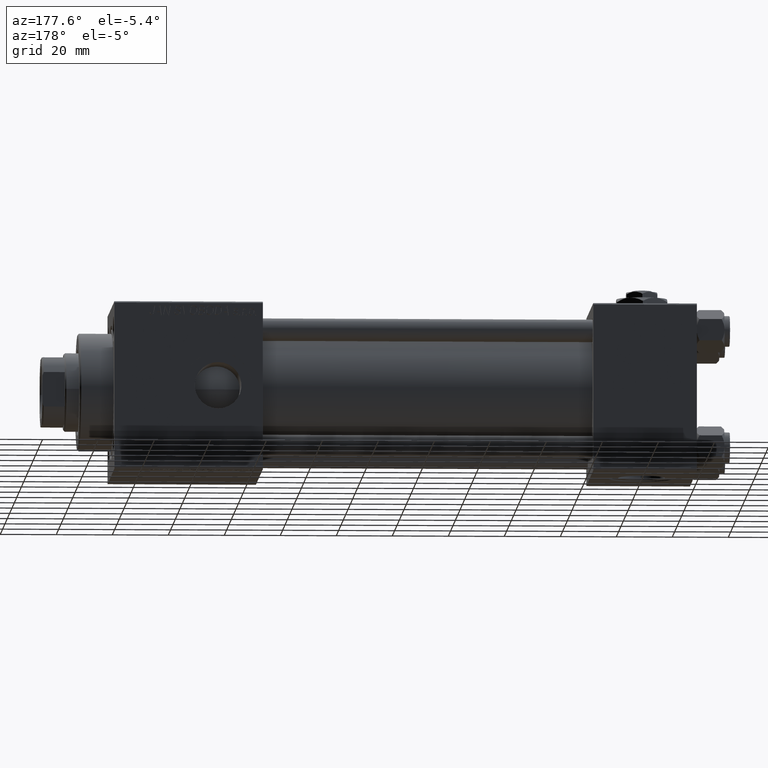
[diagram: clean part render]
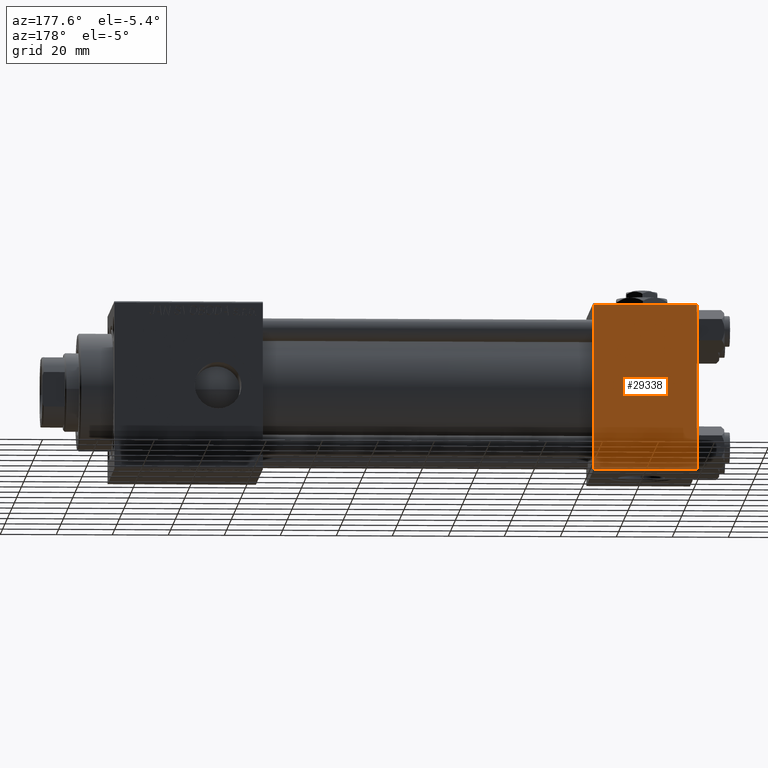
[diagram: same view with one face highlighted and labeled with its STEP entity id]
A machine part, auxiliary view. The second image highlights one B-rep face of the part: STEP entity #29338.
In plain terms, the highlighted planar face has unit normal (0, 1, 0).
Its self-contained STEP definition (entity closure, byte-faithful):
#1316 = EDGE_CURVE ( 'NONE', #21778, #6886, #28946, .T. ) ;
#6300 = DIRECTION ( 'NONE',  ( 0.000000000000000000, -0.000000000000000000, 1.000000000000000000 ) ) ;
#6494 = CARTESIAN_POINT ( 'NONE',  ( 37.00000000000000000, 29.99999999999999289, 29.50000000000000000 ) ) ;
#6859 = VERTEX_POINT ( 'NONE', #27480 ) ;
#6886 = VERTEX_POINT ( 'NONE', #20339 ) ;
#8261 = DIRECTION ( 'NONE',  ( 1.000000000000000000, 0.000000000000000000, 0.000000000000000000 ) ) ;
#9910 = ORIENTED_EDGE ( 'NONE', *, *, #30263, .T. ) ;
#10736 = LINE ( 'NONE', #26835, #22572 ) ;
#13113 = ORIENTED_EDGE ( 'NONE', *, *, #1316, .T. ) ;
#13705 = EDGE_CURVE ( 'NONE', #6859, #6886, #50199, .T. ) ;
#13742 = DIRECTION ( 'NONE',  ( 0.000000000000000000, 0.000000000000000000, -1.000000000000000000 ) ) ;
#14115 = EDGE_LOOP ( 'NONE', ( #28655, #13113, #17877, #9910 ) ) ;
#14194 = CARTESIAN_POINT ( 'NONE',  ( 37.00000000000000000, 29.99999999999999289, 30.00000000000000000 ) ) ;
#17877 = ORIENTED_EDGE ( 'NONE', *, *, #13705, .F. ) ;
#17948 = CARTESIAN_POINT ( 'NONE',  ( 0.000000000000000000, 29.99999999999999289, 30.00000000000000000 ) ) ;
#19050 = CARTESIAN_POINT ( 'NONE',  ( 37.00000000000000000, 29.99999999999999289, -29.50000000000000000 ) ) ;
#19880 = EDGE_CURVE ( 'NONE', #34285, #21778, #10736, .T. ) ;
#20339 = CARTESIAN_POINT ( 'NONE',  ( 0.000000000000000000, 29.99999999999999289, -29.50000000000000000 ) ) ;
#20386 = LINE ( 'NONE', #6494, #23718 ) ;
#21778 = VERTEX_POINT ( 'NONE', #19050 ) ;
#22572 = VECTOR ( 'NONE', #42956, 1000.000000000000000 ) ;
#23718 = VECTOR ( 'NONE', #8261, 1000.000000000000000 ) ;
#25940 = CARTESIAN_POINT ( 'NONE',  ( 37.00000000000000000, 29.99999999999999289, 29.50000000000000000 ) ) ;
#26566 = VECTOR ( 'NONE', #49274, 1000.000000000000000 ) ;
#26835 = CARTESIAN_POINT ( 'NONE',  ( 37.00000000000000000, 29.99999999999999289, 30.00000000000000000 ) ) ;
#27480 = CARTESIAN_POINT ( 'NONE',  ( 0.000000000000000000, 29.99999999999999289, 29.50000000000000000 ) ) ;
#28655 = ORIENTED_EDGE ( 'NONE', *, *, #19880, .T. ) ;
#28946 = LINE ( 'NONE', #36346, #26566 ) ;
#29338 = ADVANCED_FACE ( 'NONE', ( #51432 ), #34295, .T. ) ;
#29573 = AXIS2_PLACEMENT_3D ( 'NONE', #14194, #42468, #6300 ) ;
#30263 = EDGE_CURVE ( 'NONE', #6859, #34285, #20386, .T. ) ;
#34285 = VERTEX_POINT ( 'NONE', #25940 ) ;
#34295 = PLANE ( 'NONE',  #29573 ) ;
#36346 = CARTESIAN_POINT ( 'NONE',  ( 37.00000000000000000, 29.99999999999999289, -29.50000000000000000 ) ) ;
#42468 = DIRECTION ( 'NONE',  ( -0.000000000000000000, 1.000000000000000000, 0.000000000000000000 ) ) ;
#42956 = DIRECTION ( 'NONE',  ( 0.000000000000000000, 0.000000000000000000, -1.000000000000000000 ) ) ;
#49274 = DIRECTION ( 'NONE',  ( -1.000000000000000000, 0.000000000000000000, 0.000000000000000000 ) ) ;
#49489 = VECTOR ( 'NONE', #13742, 1000.000000000000000 ) ;
#50199 = LINE ( 'NONE', #17948, #49489 ) ;
#51432 = FACE_OUTER_BOUND ( 'NONE', #14115, .T. ) ;